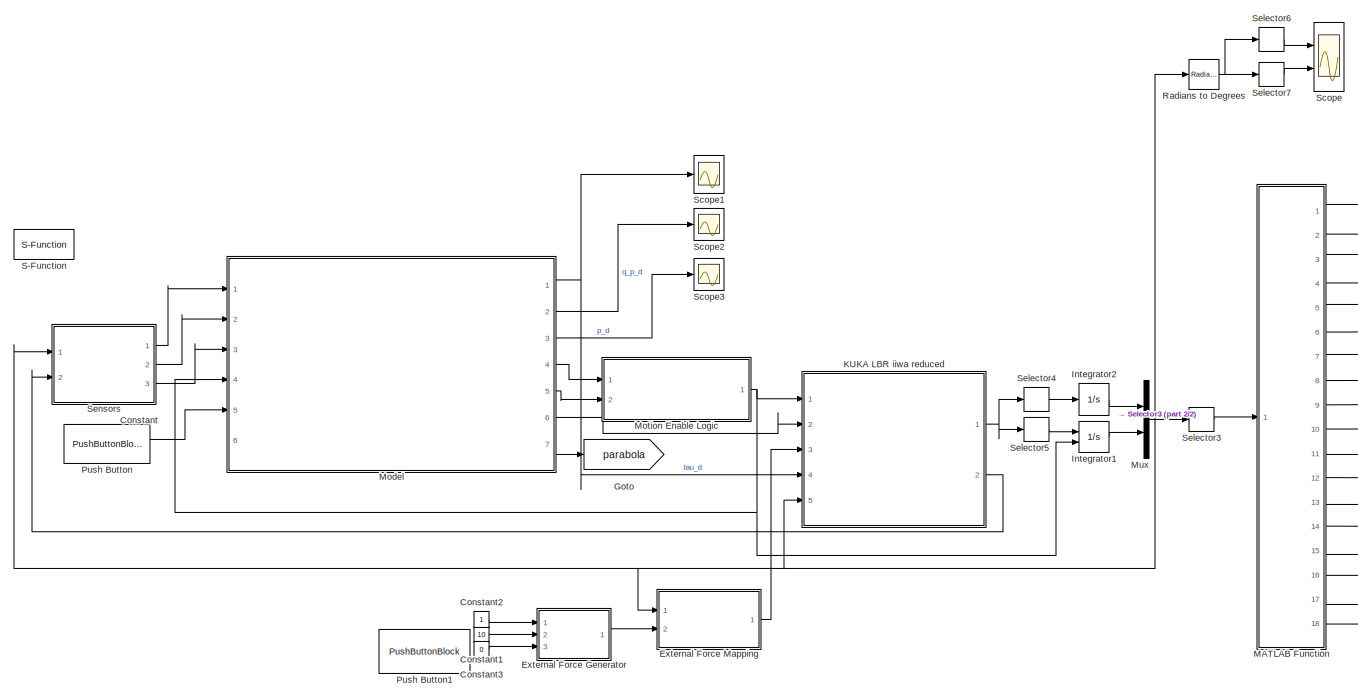
[diagram: root canvas - part 1/2, most of the canvas]
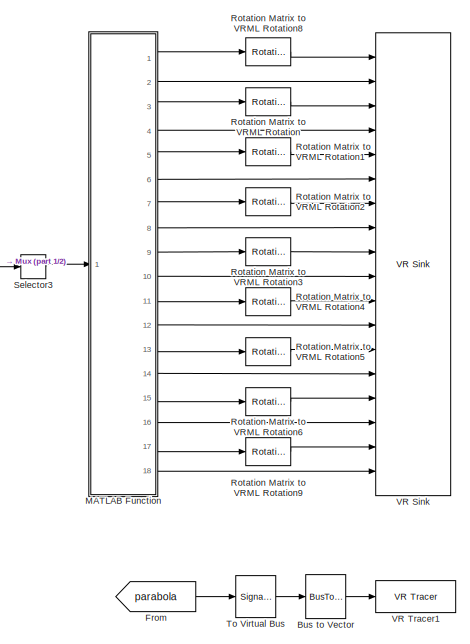
[diagram: root canvas - part 2/2, right side, full height]
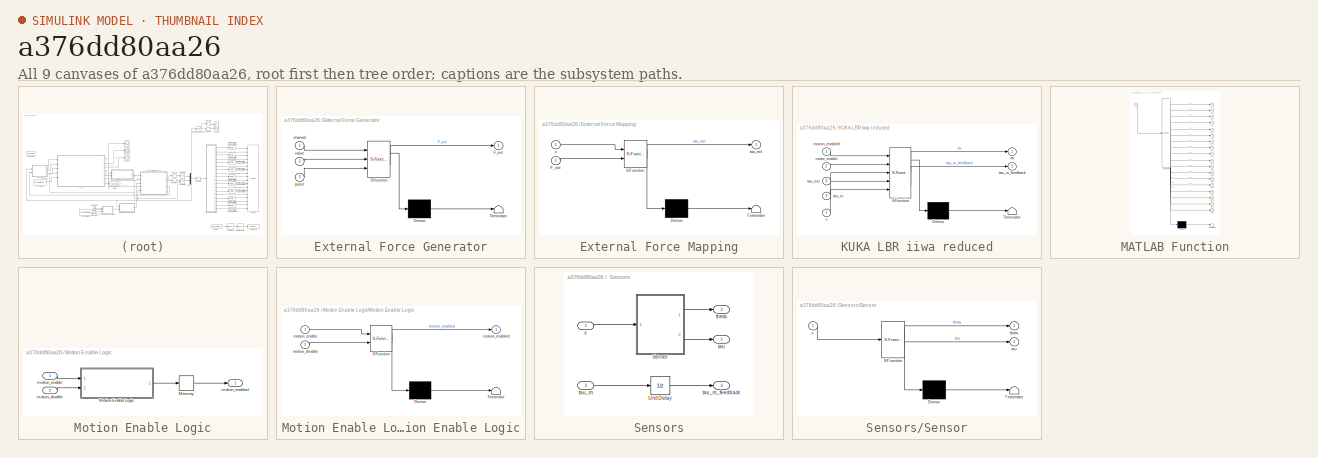
[diagram: thumbnail index - all 9 canvases of the model, root first then tree order]
MODEL slx_a376dd80aa26
KIND model
CONFIG AbsTol = auto
CONFIG EnableMultiTasking = off
CONFIG FixedStep = auto
CONFIG MaxStep = auto
CONFIG MinStep = auto
CONFIG RelTol = 1e-3
CONFIG SampleTimeConstraint = Unconstrained
CONFIG Solver = ode45
CONFIG SolverName = ode45
CONFIG StartTime = 0.0
CONFIG StopTime = inf
BLOCK [BusToVector] Bus to Vector
  Commented = through
BLOCK [Constant] Constant
  Value = 0
BLOCK [Constant] Constant1
  Value = 10
BLOCK [Constant] Constant2
BLOCK [Constant] Constant3
  Value = 0
BLOCK [SubSystem] External Force Generator
  ErrorFcn = Stateflow.Translate.translate
  PermitHierarchicalResolution = ExplicitOnly
  Ports = [3, 1]
  RequestExecContextInheritance = off
  SFBlockType = MATLAB Function
  TreatAsAtomicUnit = on
BLOCK [Demux] External Force Generator/ Demux 
  Outputs = 1
  Ports = [1, 1]
BLOCK [S-Function] External Force Generator/ SFunction 
  EnableBusSupport = on
  FunctionName = sf_sfun
  PortCounts = [3 2]
  Ports = [3, 2]
  SFcnIsStateOwnerBlock = off
  SFunctionDeploymentMode = off
  Tag = Stateflow S-Function 5
BLOCK [Terminator] External Force Generator/ Terminator 
BLOCK [Outport] External Force Generator/F_ext
  VectorParamsAs1DForOutWhenUnconnected = off
BLOCK [Inport] External Force Generator/channel
BLOCK [Inport] External Force Generator/pulse
  Port = 3
BLOCK [Inport] External Force Generator/value
  Port = 2
BLOCK [SubSystem] External Force Mapping
  ErrorFcn = Stateflow.Translate.translate
  PermitHierarchicalResolution = ExplicitOnly
  Ports = [2, 1]
  RequestExecContextInheritance = off
  SFBlockType = MATLAB Function
  TreatAsAtomicUnit = on
BLOCK [Demux] External Force Mapping/ Demux 
  Outputs = 1
  Ports = [1, 1]
BLOCK [S-Function] External Force Mapping/ SFunction 
  EnableBusSupport = on
  FunctionName = sf_sfun
  Parameters = param_robot
  PortCounts = [2 2]
  Ports = [2, 2]
  SFcnIsStateOwnerBlock = off
  SFunctionDeploymentMode = off
  Tag = Stateflow S-Function 8
BLOCK [Terminator] External Force Mapping/ Terminator 
BLOCK [Inport] External Force Mapping/F_ext
  Port = 2
BLOCK [Outport] External Force Mapping/tau_ext
  VectorParamsAs1DForOutWhenUnconnected = off
BLOCK [Inport] External Force Mapping/x
BLOCK [From] From
  GotoTag = parabola
BLOCK [Goto] Goto
  GotoTag = parabola
BLOCK [Integrator] Integrator1
  ExternalReset = falling
  InitialCondition = [param_initial_condition.q__p_0;param_initial_condition.theta__p_0]
  Ports = [2, 1]
BLOCK [Integrator] Integrator2
  InitialCondition = [param_initial_condition.q__0;param_initial_condition.theta__0]
  Ports = [1, 1]
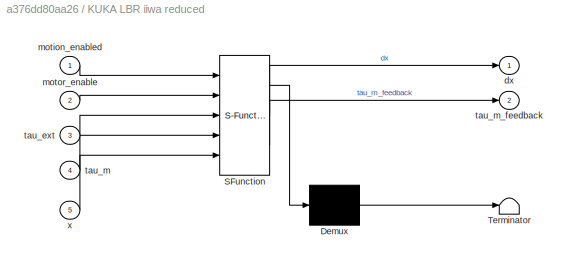
BLOCK [SubSystem] KUKA LBR iiwa reduced
  ErrorFcn = Stateflow.Translate.translate
  PermitHierarchicalResolution = ExplicitOnly
  Ports = [5, 2]
  RequestExecContextInheritance = off
  SFBlockType = MATLAB Function
  TreatAsAtomicUnit = on
BLOCK [Demux] KUKA LBR iiwa reduced/ Demux 
  Outputs = 1
  Ports = [1, 1]
BLOCK [S-Function] KUKA LBR iiwa reduced/ SFunction 
  EnableBusSupport = on
  FunctionName = sf_sfun
  Parameters = param_robot
  PortCounts = [5 3]
  Ports = [5, 3]
  SFcnIsStateOwnerBlock = off
  SFunctionDeploymentMode = off
  Tag = Stateflow S-Function 1
BLOCK [Terminator] KUKA LBR iiwa reduced/ Terminator 
BLOCK [Outport] KUKA LBR iiwa reduced/dx
  VectorParamsAs1DForOutWhenUnconnected = off
BLOCK [Inport] KUKA LBR iiwa reduced/motion_enabled
BLOCK [Inport] KUKA LBR iiwa reduced/motor_enable
  Port = 2
BLOCK [Inport] KUKA LBR iiwa reduced/tau_ext
  Port = 3
BLOCK [Inport] KUKA LBR iiwa reduced/tau_m
  Port = 4
BLOCK [Outport] KUKA LBR iiwa reduced/tau_m_feedback
  Port = 2
  VectorParamsAs1DForOutWhenUnconnected = off
BLOCK [Inport] KUKA LBR iiwa reduced/x
  Port = 5
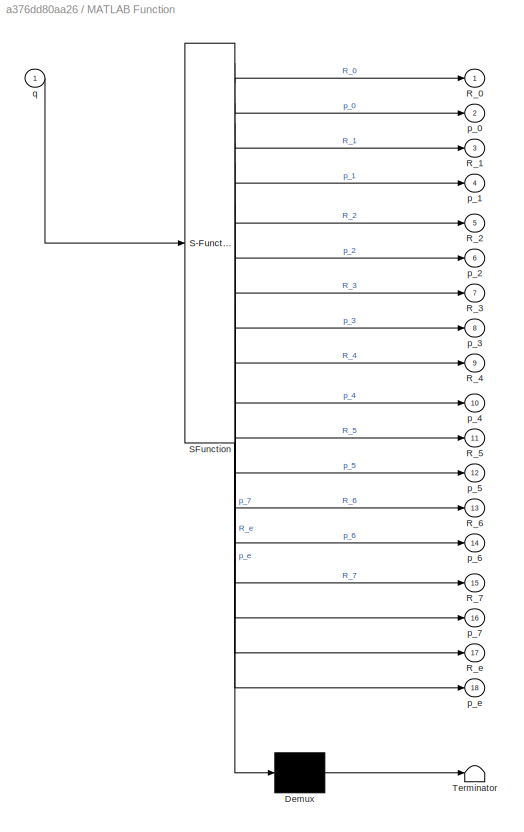
BLOCK [SubSystem] MATLAB Function
  ErrorFcn = Stateflow.Translate.translate
  PermitHierarchicalResolution = ExplicitOnly
  Ports = [1, 18]
  RequestExecContextInheritance = off
  SFBlockType = MATLAB Function
  TreatAsAtomicUnit = on
BLOCK [Demux] MATLAB Function/ Demux 
  Outputs = 1
  Ports = [1, 1]
BLOCK [S-Function] MATLAB Function/ SFunction 
  EnableBusSupport = on
  FunctionName = sf_sfun
  Parameters = param_robot
  PortCounts = [1 19]
  Ports = [1, 19]
  SFcnIsStateOwnerBlock = off
  SFunctionDeploymentMode = off
  Tag = Stateflow S-Function 2
BLOCK [Terminator] MATLAB Function/ Terminator 
BLOCK [Outport] MATLAB Function/R_0
  VectorParamsAs1DForOutWhenUnconnected = off
BLOCK [Outport] MATLAB Function/R_1
  Port = 3
  VectorParamsAs1DForOutWhenUnconnected = off
BLOCK [Outport] MATLAB Function/R_2
  Port = 5
  VectorParamsAs1DForOutWhenUnconnected = off
BLOCK [Outport] MATLAB Function/R_3
  Port = 7
  VectorParamsAs1DForOutWhenUnconnected = off
BLOCK [Outport] MATLAB Function/R_4
  Port = 9
  VectorParamsAs1DForOutWhenUnconnected = off
BLOCK [Outport] MATLAB Function/R_5
  Port = 11
  VectorParamsAs1DForOutWhenUnconnected = off
BLOCK [Outport] MATLAB Function/R_6
  Port = 13
  VectorParamsAs1DForOutWhenUnconnected = off
BLOCK [Outport] MATLAB Function/R_7
  Port = 15
  VectorParamsAs1DForOutWhenUnconnected = off
BLOCK [Outport] MATLAB Function/R_e
  Port = 17
  VectorParamsAs1DForOutWhenUnconnected = off
BLOCK [Outport] MATLAB Function/p_0
  Port = 2
  VectorParamsAs1DForOutWhenUnconnected = off
BLOCK [Outport] MATLAB Function/p_1
  Port = 4
  VectorParamsAs1DForOutWhenUnconnected = off
BLOCK [Outport] MATLAB Function/p_2
  Port = 6
  VectorParamsAs1DForOutWhenUnconnected = off
BLOCK [Outport] MATLAB Function/p_3
  Port = 8
  VectorParamsAs1DForOutWhenUnconnected = off
BLOCK [Outport] MATLAB Function/p_4
  Port = 10
  VectorParamsAs1DForOutWhenUnconnected = off
BLOCK [Outport] MATLAB Function/p_5
  Port = 12
  VectorParamsAs1DForOutWhenUnconnected = off
BLOCK [Outport] MATLAB Function/p_6
  Port = 14
  VectorParamsAs1DForOutWhenUnconnected = off
BLOCK [Outport] MATLAB Function/p_7
  Port = 16
  VectorParamsAs1DForOutWhenUnconnected = off
BLOCK [Outport] MATLAB Function/p_e
  Port = 18
  VectorParamsAs1DForOutWhenUnconnected = off
BLOCK [Inport] MATLAB Function/q
BLOCK [ModelReference] Model
  ModelNameDialog = controller_ballcatcher.slx
  ModelReferenceVersion = 1.3519
  Ports = [6, 7]
BLOCK [SubSystem] Motion Enable Logic
  Ports = [2, 1]
  RequestExecContextInheritance = off
BLOCK [Memory] Motion Enable Logic/Memory
BLOCK [SubSystem] Motion Enable Logic/Motion Enable Logic
  ErrorFcn = Stateflow.Translate.translate
  PermitHierarchicalResolution = ExplicitOnly
  Ports = [2, 1]
  RequestExecContextInheritance = off
  SFBlockType = MATLAB Function
  TreatAsAtomicUnit = on
BLOCK [Demux] Motion Enable Logic/Motion Enable Logic/ Demux 
  Outputs = 1
  Ports = [1, 1]
BLOCK [S-Function] Motion Enable Logic/Motion Enable Logic/ SFunction 
  EnableBusSupport = on
  FunctionName = sf_sfun
  PortCounts = [2 2]
  Ports = [2, 2]
  SFcnIsStateOwnerBlock = off
  SFunctionDeploymentMode = off
  Tag = Stateflow S-Function 4
BLOCK [Terminator] Motion Enable Logic/Motion Enable Logic/ Terminator 
BLOCK [Inport] Motion Enable Logic/Motion Enable Logic/motion_disable
  Port = 2
BLOCK [Inport] Motion Enable Logic/Motion Enable Logic/motion_enable
BLOCK [Outport] Motion Enable Logic/Motion Enable Logic/motion_enabled
  VectorParamsAs1DForOutWhenUnconnected = off
BLOCK [Inport] Motion Enable Logic/motion_disable
  Port = 2
BLOCK [Inport] Motion Enable Logic/motion_enable
BLOCK [Outport] Motion Enable Logic/motion_enabled
  VectorParamsAs1DForOutWhenUnconnected = off
BLOCK [Mux] Mux
  DisplayOption = bar
  Inputs = 2
  Ports = [2, 1]
BLOCK [PushButtonBlock] Push Button
  ButtonText = MFT Button
BLOCK [PushButtonBlock] Push Button1
  ButtonText = Force/Torque
BLOCK [Reference] Radians to Degrees  REF=simulink_extras/Transformations/Radians
to Degrees
  Ports = [1, 1]
  SourceBlock = simulink_extras/Transformations/Radians\nto Degrees
  SourceProductBaseCode = SL
  SourceType = RadiansToDegrees
BLOCK [Reference] Rotation Matrix to VRML Rotation  REF=vrlib/Utilities/Rotation Matrix
to VR Rotation
  Ports = [1, 1]
  SourceBlock = vrlib/Utilities/Rotation Matrix\nto VR Rotation
  SourceProductBaseCode = SL
  SourceType = Rotation Matrix to VR Rotation
BLOCK [Reference] Rotation Matrix to VRML Rotation1  REF=vrlib/Utilities/Rotation Matrix
to VR Rotation
  Ports = [1, 1]
  SourceBlock = vrlib/Utilities/Rotation Matrix\nto VR Rotation
  SourceProductBaseCode = SL
  SourceType = Rotation Matrix to VR Rotation
BLOCK [Reference] Rotation Matrix to VRML Rotation2  REF=vrlib/Utilities/Rotation Matrix
to VR Rotation
  Ports = [1, 1]
  SourceBlock = vrlib/Utilities/Rotation Matrix\nto VR Rotation
  SourceProductBaseCode = SL
  SourceType = Rotation Matrix to VR Rotation
BLOCK [Reference] Rotation Matrix to VRML Rotation3  REF=vrlib/Utilities/Rotation Matrix
to VR Rotation
  Ports = [1, 1]
  SourceBlock = vrlib/Utilities/Rotation Matrix\nto VR Rotation
  SourceProductBaseCode = SL
  SourceType = Rotation Matrix to VR Rotation
BLOCK [Reference] Rotation Matrix to VRML Rotation4  REF=vrlib/Utilities/Rotation Matrix
to VR Rotation
  Ports = [1, 1]
  SourceBlock = vrlib/Utilities/Rotation Matrix\nto VR Rotation
  SourceProductBaseCode = SL
  SourceType = Rotation Matrix to VR Rotation
BLOCK [Reference] Rotation Matrix to VRML Rotation5  REF=vrlib/Utilities/Rotation Matrix
to VR Rotation
  Ports = [1, 1]
  SourceBlock = vrlib/Utilities/Rotation Matrix\nto VR Rotation
  SourceProductBaseCode = SL
  SourceType = Rotation Matrix to VR Rotation
BLOCK [Reference] Rotation Matrix to VRML Rotation6  REF=vrlib/Utilities/Rotation Matrix
to VR Rotation
  Ports = [1, 1]
  SourceBlock = vrlib/Utilities/Rotation Matrix\nto VR Rotation
  SourceProductBaseCode = SL
  SourceType = Rotation Matrix to VR Rotation
BLOCK [Reference] Rotation Matrix to VRML Rotation8  REF=vrlib/Utilities/Rotation Matrix
to VR Rotation
  Ports = [1, 1]
  SourceBlock = vrlib/Utilities/Rotation Matrix\nto VR Rotation
  SourceProductBaseCode = SL
  SourceType = Rotation Matrix to VR Rotation
BLOCK [Reference] Rotation Matrix to VRML Rotation9  REF=vrlib/Utilities/Rotation Matrix
to VR Rotation
  Ports = [1, 1]
  SourceBlock = vrlib/Utilities/Rotation Matrix\nto VR Rotation
  SourceProductBaseCode = SL
  SourceType = Rotation Matrix to VR Rotation
BLOCK [S-Function] S-Function
  Commented = on
  EnableBusSupport = off
  FunctionName = sfun_time
  Parameters = param_visualization.retardation
  Ports = []
  SFcnIsStateOwnerBlock = off
  SFunctionDeploymentMode = off
BLOCK [Scope] Scope
  Floating = off
  NumInputPorts = 2
  Ports = [2]
  ScopeSpecificationString = Simulink.scopes.TimeScopeBlockCfg('CurrentConfiguration', extmgr.ConfigurationSet(extmgr.Configuration('Core','General UI',true),extmgr.Configuration('Core','Source UI',true),extmgr.Configuration('Sources','WiredSimulink',true),extmgr.Configuration('Visuals','Time Domain',true,'SerializedDisplays',{struct('MinYLimReal','-754.29207','MaxYLimReal','283.81028','YLabelReal','','MinYLimMag',' 0.00000',...<+2196ch>
BLOCK [Scope] Scope1
  Floating = off
  NumInputPorts = 1
  Ports = [1]
  ScopeSpecificationString = Simulink.scopes.TimeScopeBlockCfg('CurrentConfiguration', extmgr.ConfigurationSet(extmgr.Configuration('Core','General UI',true),extmgr.Configuration('Core','Source UI',true),extmgr.Configuration('Sources','WiredSimulink',true,'DataLoggingVariableName','ScopeData1'),extmgr.Configuration('Visuals','Time Domain',true,'SerializedDisplays',{struct('MinYLimReal','-51.05689','MaxYLimReal','60.98238','YL...<+1660ch>
BLOCK [Scope] Scope2
  Floating = off
  NumInputPorts = 1
  Ports = [1]
  ScopeSpecificationString = Simulink.scopes.TimeScopeBlockCfg('CurrentConfiguration', extmgr.ConfigurationSet(extmgr.Configuration('Core','General UI',true),extmgr.Configuration('Core','Source UI',true),extmgr.Configuration('Sources','WiredSimulink',true,'DataLoggingVariableName','ScopeData1'),extmgr.Configuration('Visuals','Time Domain',true,'SerializedDisplays',{struct('MinYLimReal','-467.23626','MaxYLimReal','405.59316','...<+1695ch>
BLOCK [Scope] Scope3
  Floating = off
  NumInputPorts = 1
  Ports = [1]
  ScopeSpecificationString = Simulink.scopes.TimeScopeBlockCfg('CurrentConfiguration', extmgr.ConfigurationSet(extmgr.Configuration('Core','General UI',true),extmgr.Configuration('Core','Source UI',true),extmgr.Configuration('Sources','WiredSimulink',true,'DataLoggingVariableName','ScopeData2'),extmgr.Configuration('Visuals','Time Domain',true,'SerializedDisplays',{struct('MinYLimReal','-0.1125','MaxYLimReal','1.0125','YLabel...<+1719ch>
BLOCK [Selector] Selector3
  IndexOptions = Index vector (dialog)
  Indices = [1:7]
  InputPortWidth = 28
  OutputSizes = 1
  Ports = [1, 1]
BLOCK [Selector] Selector4
  IndexOptions = Index vector (dialog)
  Indices = [1:14]
  InputPortWidth = 28
  OutputSizes = 1
  Ports = [1, 1]
BLOCK [Selector] Selector5
  IndexOptions = Index vector (dialog)
  Indices = [15:28]
  InputPortWidth = 28
  OutputSizes = 1
  Ports = [1, 1]
BLOCK [Selector] Selector6
  IndexOptions = Index vector (dialog)
  Indices = [1:7]
  InputPortWidth = 28
  OutputSizes = 1
  Ports = [1, 1]
BLOCK [Selector] Selector7
  IndexOptions = Index vector (dialog)
  Indices = [15:21]
  InputPortWidth = 28
  OutputSizes = 1
  Ports = [1, 1]
BLOCK [SubSystem] Sensors
  Ports = [2, 3]
  RequestExecContextInheritance = off
  SystemSampleTime = param_sensor.T_a
  TreatAsAtomicUnit = on
BLOCK [SubSystem] Sensors/Sensor
  ErrorFcn = Stateflow.Translate.translate
  PermitHierarchicalResolution = ExplicitOnly
  Ports = [1, 2]
  RequestExecContextInheritance = off
  SFBlockType = MATLAB Function
  SystemSampleTime = param_sensor.T_a
BLOCK [Demux] Sensors/Sensor/ Demux 
  Outputs = 1
  Ports = [1, 1]
BLOCK [S-Function] Sensors/Sensor/ SFunction 
  EnableBusSupport = on
  FunctionName = sf_sfun
  Parameters = param_robot
  PortCounts = [1 3]
  Ports = [1, 3]
  SFcnIsStateOwnerBlock = off
  SFunctionDeploymentMode = off
  Tag = Stateflow S-Function 3
BLOCK [Terminator] Sensors/Sensor/ Terminator 
BLOCK [Outport] Sensors/Sensor/tau
  Port = 2
  VectorParamsAs1DForOutWhenUnconnected = off
BLOCK [Outport] Sensors/Sensor/theta
  VectorParamsAs1DForOutWhenUnconnected = off
BLOCK [Inport] Sensors/Sensor/x
BLOCK [UnitDelay] Sensors/Unit Delay
  HasFrameUpgradeWarning = on
  SampleTime = -1
BLOCK [Outport] Sensors/tau
  VectorParamsAs1DForOutWhenUnconnected = off
BLOCK [Inport] Sensors/tau_m
  Port = 2
BLOCK [Outport] Sensors/tau_m_feedback
  Port = 3
  VectorParamsAs1DForOutWhenUnconnected = off
BLOCK [Outport] Sensors/theta
  Port = 2
  VectorParamsAs1DForOutWhenUnconnected = off
BLOCK [Inport] Sensors/x
BLOCK [SignalConversion] To Virtual Bus
  Commented = through
  ConversionOutput = Virtual bus
  OverrideOpt = off
BLOCK [Reference] VR Sink  REF=vrlib/VR Sink
  InstantiateOnLoad = on
  Ports = [18]
  SourceBlock = vrlib/VR Sink
  SourceProductBaseCode = SL
  SourceType = Virtual Reality Sink
BLOCK [Reference] VR Tracer1  REF=vrlib/VR Tracer
  Ports = [1]
  SourceBlock = vrlib/VR Tracer
  SourceProductBaseCode = SL
  SourceType = VR Tracer
LINE Bus to Vector:1 -> VR Tracer1:1
LINE Constant1:1 -> External Force Generator:2
LINE Constant2:1 -> External Force Generator:1
LINE Constant3:1 -> External Force Generator:3
LINE Constant:1 -> Model:5
LINE External Force Generator:1 -> External Force Mapping:2
LINE External Force Mapping:1 -> KUKA LBR iiwa reduced:3
LINE From:1 -> To Virtual Bus:1
LINE Integrator1:1 -> Mux:2
LINE Integrator2:1 -> Mux:1
NET KUKA LBR iiwa reduced:1 -> Selector4:1, Selector5:1
LINE KUKA LBR iiwa reduced:2 -> Sensors:2
LINE MATLAB Function:1 -> Rotation Matrix to VRML Rotation8:1
LINE MATLAB Function:10 -> VR Sink:10
LINE MATLAB Function:11 -> Rotation Matrix to VRML Rotation4:1
LINE MATLAB Function:12 -> VR Sink:12
LINE MATLAB Function:13 -> Rotation Matrix to VRML Rotation5:1
LINE MATLAB Function:14 -> VR Sink:14
LINE MATLAB Function:15 -> Rotation Matrix to VRML Rotation6:1
LINE MATLAB Function:16 -> VR Sink:16
LINE MATLAB Function:17 -> Rotation Matrix to VRML Rotation9:1
LINE MATLAB Function:18 -> VR Sink:18
LINE MATLAB Function:2 -> VR Sink:2
LINE MATLAB Function:3 -> Rotation Matrix to VRML Rotation:1
LINE MATLAB Function:4 -> VR Sink:4
LINE MATLAB Function:5 -> Rotation Matrix to VRML Rotation1:1
LINE MATLAB Function:6 -> VR Sink:6
LINE MATLAB Function:7 -> Rotation Matrix to VRML Rotation2:1
LINE MATLAB Function:8 -> VR Sink:8
LINE MATLAB Function:9 -> Rotation Matrix to VRML Rotation3:1
NET Model:1 -> KUKA LBR iiwa reduced:4, Scope1:1
LINE Model:2 -> Scope2:1
LINE Model:3 -> Scope3:1
LINE Model:4 -> Motion Enable Logic:1
LINE Model:5 -> Motion Enable Logic:2
LINE Model:6 -> KUKA LBR iiwa reduced:2
LINE Model:7 -> Goto:1
LINE Motion Enable Logic/Memory:1 -> Motion Enable Logic/motion_enabled:1
LINE Motion Enable Logic/Motion Enable Logic:1 -> Motion Enable Logic/Memory:1
LINE Motion Enable Logic/motion_disable:1 -> Motion Enable Logic/Motion Enable Logic:2
LINE Motion Enable Logic/motion_enable:1 -> Motion Enable Logic/Motion Enable Logic:1
NET Motion Enable Logic:1 -> Integrator1:2, KUKA LBR iiwa reduced:1, Model:4
NET Mux:1 -> External Force Mapping:1, KUKA LBR iiwa reduced:5, Radians to Degrees:1, Selector3:1, Sensors:1
NET Radians to Degrees:1 -> Selector6:1, Selector7:1
LINE Rotation Matrix to VRML Rotation1:1 -> VR Sink:5
LINE Rotation Matrix to VRML Rotation2:1 -> VR Sink:7
LINE Rotation Matrix to VRML Rotation3:1 -> VR Sink:9
LINE Rotation Matrix to VRML Rotation4:1 -> VR Sink:11
LINE Rotation Matrix to VRML Rotation5:1 -> VR Sink:13
LINE Rotation Matrix to VRML Rotation6:1 -> VR Sink:15
LINE Rotation Matrix to VRML Rotation8:1 -> VR Sink:1
LINE Rotation Matrix to VRML Rotation9:1 -> VR Sink:17
LINE Rotation Matrix to VRML Rotation:1 -> VR Sink:3
LINE Selector3:1 -> MATLAB Function:1
LINE Selector4:1 -> Integrator2:1
LINE Selector5:1 -> Integrator1:1
LINE Selector6:1 -> Scope:1
LINE Selector7:1 -> Scope:2
LINE Sensors/Sensor:1 -> Sensors/theta:1
LINE Sensors/Sensor:2 -> Sensors/tau:1
LINE Sensors/Unit Delay:1 -> Sensors/tau_m_feedback:1
LINE Sensors/tau_m:1 -> Sensors/Unit Delay:1
LINE Sensors/x:1 -> Sensors/Sensor:1
LINE Sensors:1 -> Model:1
LINE Sensors:2 -> Model:2
LINE Sensors:3 -> Model:3
LINE To Virtual Bus:1 -> Bus to Vector:1
note: NET lines group one-source signal fan-out (src -> all destinations, sorted); 1:1 wires keep LINE
CHART KUKA LBR iiwa reduced states=1 transitions=1
  STATE_LABEL 'eML_blk_kernel()'
  STATE_LABEL 'SCRIPT:\nfunction [dx,tau_m_feedback]   = fcn(motion_enabled,motor_enable, tau_ext, tau_m, x, param_robot)\n  if(motion_enabled)\n    q=x(1:7);\n    theta=x(8:14);\n    q_p=x(15:21);\n    theta_p=x(22:28);\n    \n    motor_disable=(motor_enable~=1);\n    tau_m(motor_disable)=0;\n    \n    M=iiwa_reduced_inertia_matrix(q,param_robot);\n    C=iiwa_reduced_coriolis_matrix(q,q_p,param_robot);\n    N=iiwa_conservat...<+298ch>'
CHART MATLAB Function states=1 transitions=1
  STATE_LABEL 'eML_blk_kernel()'
  STATE_LABEL 'SCRIPT:\nfunction [R_0,p_0,R_1,p_1,R_2,p_2,R_3,p_3,R_4,p_4,R_5,p_5,R_6,p_6,R_7,p_7,R_e,p_e] = fcn(q,param_robot)\n  p_0=param_robot.p_0;\n  R_0=param_robot.R_0; \n  H=iiwa_homogeneous_transformation(q,param_robot);\n  R_1=H(1:3,1:3);\n  p_1=H(1:3,4);\n  R_2=H(1:3,5:7);\n  p_2=H(1:3,8);\n  R_3=H(1:3,9:11);\n  p_3=H(1:3,12);\n  R_4=H(1:3,13:15);\n  p_4=H(1:3,16);\n  R_5=H(1:3,17:19);\n  p_5=H(1:3,20);\n  R_6=H(1:3...<+104ch>'
CHART Sensors/Sensor states=1 transitions=1
  STATE_LABEL 'eML_blk_kernel()'
  STATE_LABEL 'SCRIPT:\nfunction [theta,tau] = fcn(x,param_robot)\n  q=x(1:7);\n  theta=x(8:14);\n  tau=param_robot.K*(theta-q);\nend\n'
CHART Motion Enable Logic/Motion Enable Logic states=1 transitions=1
  STATE_LABEL 'eML_blk_kernel()'
  STATE_LABEL 'SCRIPT:\nfunction motion_enabled = fcn(motion_enable, motion_disable)\n  persistent x_motion_enabled;\n\n  if(isempty(x_motion_enabled))\n      x_motion_enabled=0;\n  end\n  \n  if(motion_disable)\n    x_motion_enabled=0;\n  elseif(motion_enable)\n    x_motion_enabled=1;\n  end\n  \n  motion_enabled=x_motion_enabled;\nend\n'
CHART External Force Generator states=1 transitions=1
  STATE_LABEL 'eML_blk_kernel()'
  STATE_LABEL 'SCRIPT:\nfunction F_ext = fcn(channel,value,pulse)\n  F_ext=zeros(6,1);\n  if(pulse && channel>=1 && channel<=6)\n    F_ext(channel)=value;\n  end\nend\n'
CHART External Force Mapping states=1 transitions=1
  STATE_LABEL 'eML_blk_kernel()'
  STATE_LABEL "SCRIPT:\nfunction tau_ext = fcn(x, F_ext,param_robot)\n  n=7;\n  q=x(1:n);\n  J=iiwa_jacobian(q,param_robot);\n  H=iiwa_homogeneous_transformation_endeffector(q,param_robot);\n  R_0_e=H(1:3,1:3);\n  tau_ext=J'*[R_0_e,zeros(3);zeros(3),R_0_e]*F_ext;\nend\n"
CHART  states=0 transitions=0
CHART  states=0 transitions=0
CHART  states=0 transitions=0
CHART  states=0 transitions=0
CHART  states=0 transitions=0
CHART  states=0 transitions=0
